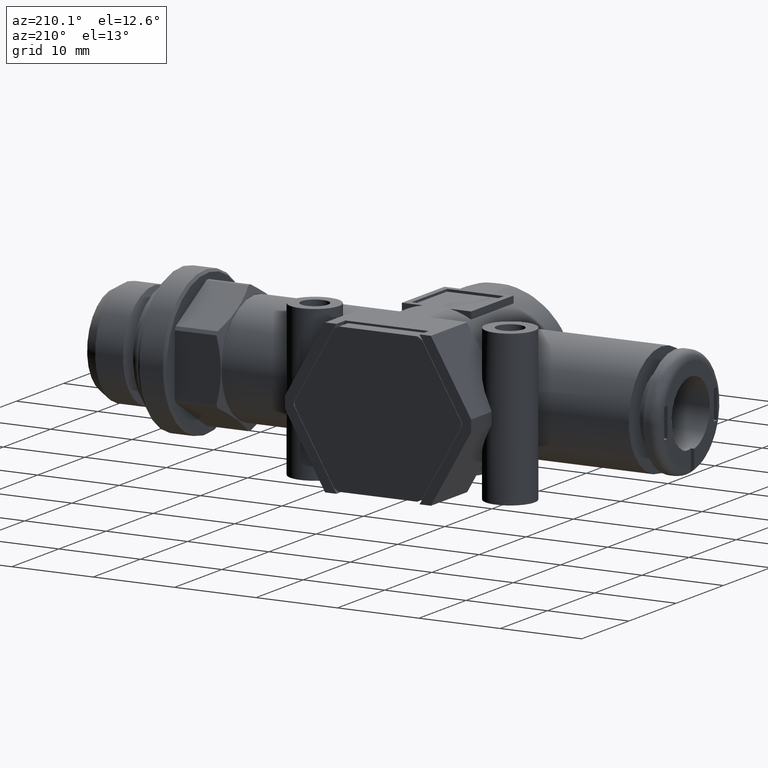
[diagram: clean part render]
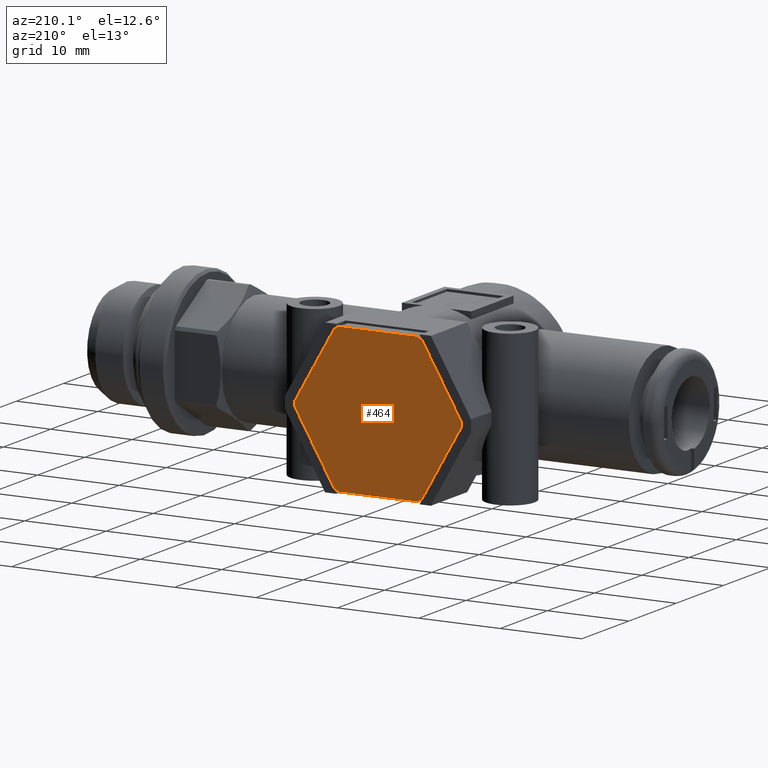
[diagram: same view with one face highlighted and labeled with its STEP entity id]
A machine part, auxiliary view. The second image highlights one B-rep face of the part: STEP entity #464.
In plain terms, the highlighted planar face has unit normal (0, 1, 0).
Its self-contained STEP definition (entity closure, byte-faithful):
#464 = ADVANCED_FACE( '', ( #963 ), #964, .T. );
#963 = FACE_OUTER_BOUND( '', #1500, .T. );
#964 = PLANE( '', #1501 );
#1500 = EDGE_LOOP( '', ( #2482, #2483, #2484, #2485, #2486, #2487, #2488, #2489, #2490, #2491, #2492, #2493 ) );
#1501 = AXIS2_PLACEMENT_3D( '', #2494, #2495, #2496 );
#2482 = ORIENTED_EDGE( '', *, *, #2902, .T. );
#2483 = ORIENTED_EDGE( '', *, *, #3220, .T. );
#2484 = ORIENTED_EDGE( '', *, *, #2897, .T. );
#2485 = ORIENTED_EDGE( '', *, *, #3221, .T. );
#2486 = ORIENTED_EDGE( '', *, *, #2980, .T. );
#2487 = ORIENTED_EDGE( '', *, *, #3101, .T. );
#2488 = ORIENTED_EDGE( '', *, *, #3091, .T. );
#2489 = ORIENTED_EDGE( '', *, *, #2891, .T. );
#2490 = ORIENTED_EDGE( '', *, *, #3159, .T. );
#2491 = ORIENTED_EDGE( '', *, *, #3162, .T. );
#2492 = ORIENTED_EDGE( '', *, *, #3108, .T. );
#2493 = ORIENTED_EDGE( '', *, *, #3066, .T. );
#2494 = CARTESIAN_POINT( '', ( 1.90000000000000, 0.000000000000000, 0.000000000000000 ) );
#2495 = DIRECTION( '', ( 1.00000000000000, 0.000000000000000, 0.000000000000000 ) );
#2496 = DIRECTION( '', ( 0.000000000000000, 0.000000000000000, -1.00000000000000 ) );
#2891 = EDGE_CURVE( '', #3375, #3373, #3376, .T. );
#2897 = EDGE_CURVE( '', #3384, #3385, #3386, .T. );
#2902 = EDGE_CURVE( '', #3393, #3394, #3395, .T. );
#2980 = EDGE_CURVE( '', #3522, #3523, #3524, .T. );
#3066 = EDGE_CURVE( '', #3659, #3393, #3660, .T. );
#3091 = EDGE_CURVE( '', #3699, #3375, #3700, .T. );
#3101 = EDGE_CURVE( '', #3523, #3699, #3713, .T. );
#3108 = EDGE_CURVE( '', #3722, #3659, #3723, .T. );
#3159 = EDGE_CURVE( '', #3373, #3793, #3794, .T. );
#3162 = EDGE_CURVE( '', #3793, #3722, #3797, .T. );
#3220 = EDGE_CURVE( '', #3394, #3384, #3877, .T. );
#3221 = EDGE_CURVE( '', #3385, #3522, #3878, .T. );
#3373 = VERTEX_POINT( '', #4069 );
#3375 = VERTEX_POINT( '', #4072 );
#3376 = CIRCLE( '', #4073, 10.2000000000000 );
#3384 = VERTEX_POINT( '', #4082 );
#3385 = VERTEX_POINT( '', #4083 );
#3386 = LINE( '', #4084, #4085 );
#3393 = VERTEX_POINT( '', #4095 );
#3394 = VERTEX_POINT( '', #4096 );
#3395 = LINE( '', #4097, #4098 );
#3522 = VERTEX_POINT( '', #4419 );
#3523 = VERTEX_POINT( '', #4420 );
#3524 = LINE( '', #4421, #4422 );
#3659 = VERTEX_POINT( '', #4807 );
#3660 = CIRCLE( '', #4808, 10.2000000000000 );
#3699 = VERTEX_POINT( '', #4905 );
#3700 = LINE( '', #4906, #4907 );
#3713 = CIRCLE( '', #4924, 10.2000000000000 );
#3722 = VERTEX_POINT( '', #4934 );
#3723 = LINE( '', #4935, #4936 );
#3793 = VERTEX_POINT( '', #5031 );
#3794 = LINE( '', #5032, #5033 );
#3797 = CIRCLE( '', #5037, 10.2000000000000 );
#3877 = CIRCLE( '', #5274, 10.2000000000000 );
#3878 = CIRCLE( '', #5275, 10.2000000000000 );
#4069 = CARTESIAN_POINT( '', ( 1.90000000000000, 5.39422863405995, -8.65692193816530 ) );
#4072 = CARTESIAN_POINT( '', ( 1.90000000000000, 4.80000000000000, -9.00000000000000 ) );
#4073 = AXIS2_PLACEMENT_3D( '', #5474, #5475, #5476 );
#4082 = CARTESIAN_POINT( '', ( 1.90000000000000, -5.39422863405995, 8.65692193816530 ) );
#4083 = CARTESIAN_POINT( '', ( 1.90000000000000, -10.1942286340599, 0.343078061834699 ) );
#4084 = CARTESIAN_POINT( '', ( 1.90000000000000, -5.19615242270663, 9.00000000000000 ) );
#4085 = VECTOR( '', #5484, 1000.00000000000 );
#4095 = CARTESIAN_POINT( '', ( 1.90000000000000, 4.80000000000000, 9.00000000000000 ) );
#4096 = CARTESIAN_POINT( '', ( 1.90000000000000, -4.80000000000000, 9.00000000000000 ) );
#4097 = CARTESIAN_POINT( '', ( 1.90000000000000, 5.19615242270663, 9.00000000000000 ) );
#4098 = VECTOR( '', #5488, 1000.00000000000 );
#4419 = CARTESIAN_POINT( '', ( 1.90000000000000, -10.1942286340599, -0.343078061834698 ) );
#4420 = CARTESIAN_POINT( '', ( 1.90000000000000, -5.39422863405995, -8.65692193816530 ) );
#4421 = CARTESIAN_POINT( '', ( 1.90000000000000, -10.3923048454133, 0.000000000000000 ) );
#4422 = VECTOR( '', #5586, 1000.00000000000 );
#4807 = CARTESIAN_POINT( '', ( 1.90000000000000, 5.39422863405995, 8.65692193816530 ) );
#4808 = AXIS2_PLACEMENT_3D( '', #5694, #5695, #5696 );
#4905 = CARTESIAN_POINT( '', ( 1.90000000000000, -4.80000000000000, -9.00000000000000 ) );
#4906 = CARTESIAN_POINT( '', ( 1.90000000000000, -5.19615242270663, -9.00000000000000 ) );
#4907 = VECTOR( '', #5728, 1000.00000000000 );
#4924 = AXIS2_PLACEMENT_3D( '', #5739, #5740, #5741 );
#4934 = CARTESIAN_POINT( '', ( 1.90000000000000, 10.1942286340599, 0.343078061834698 ) );
#4935 = CARTESIAN_POINT( '', ( 1.90000000000000, 10.3923048454133, 0.000000000000000 ) );
#4936 = VECTOR( '', #5749, 1000.00000000000 );
#5031 = CARTESIAN_POINT( '', ( 1.90000000000000, 10.1942286340599, -0.343078061834699 ) );
#5032 = CARTESIAN_POINT( '', ( 1.90000000000000, 5.19615242270663, -9.00000000000000 ) );
#5033 = VECTOR( '', #5806, 1000.00000000000 );
#5037 = AXIS2_PLACEMENT_3D( '', #5808, #5809, #5810 );
#5274 = AXIS2_PLACEMENT_3D( '', #5871, #5872, #5873 );
#5275 = AXIS2_PLACEMENT_3D( '', #5874, #5875, #5876 );
#5474 = CARTESIAN_POINT( '', ( 1.90000000000000, 0.000000000000000, 0.000000000000000 ) );
#5475 = DIRECTION( '', ( 1.00000000000000, 0.000000000000000, 0.000000000000000 ) );
#5476 = DIRECTION( '', ( 0.000000000000000, 0.000000000000000, -1.00000000000000 ) );
#5484 = DIRECTION( '', ( 0.000000000000000, -0.500000000000000, -0.866025403784439 ) );
#5488 = DIRECTION( '', ( 0.000000000000000, -1.00000000000000, 0.000000000000000 ) );
#5586 = DIRECTION( '', ( 0.000000000000000, 0.500000000000000, -0.866025403784439 ) );
#5694 = CARTESIAN_POINT( '', ( 1.90000000000000, 0.000000000000000, 0.000000000000000 ) );
#5695 = DIRECTION( '', ( 1.00000000000000, 0.000000000000000, 0.000000000000000 ) );
#5696 = DIRECTION( '', ( 0.000000000000000, 0.000000000000000, -1.00000000000000 ) );
#5728 = DIRECTION( '', ( 0.000000000000000, 1.00000000000000, 0.000000000000000 ) );
#5739 = CARTESIAN_POINT( '', ( 1.90000000000000, 0.000000000000000, 0.000000000000000 ) );
#5740 = DIRECTION( '', ( 1.00000000000000, 0.000000000000000, 0.000000000000000 ) );
#5741 = DIRECTION( '', ( 0.000000000000000, 0.000000000000000, -1.00000000000000 ) );
#5749 = DIRECTION( '', ( 0.000000000000000, -0.500000000000000, 0.866025403784439 ) );
#5806 = DIRECTION( '', ( 0.000000000000000, 0.500000000000000, 0.866025403784439 ) );
#5808 = CARTESIAN_POINT( '', ( 1.90000000000000, 0.000000000000000, 0.000000000000000 ) );
#5809 = DIRECTION( '', ( 1.00000000000000, 0.000000000000000, 0.000000000000000 ) );
#5810 = DIRECTION( '', ( 0.000000000000000, 0.000000000000000, -1.00000000000000 ) );
#5871 = CARTESIAN_POINT( '', ( 1.90000000000000, 0.000000000000000, 0.000000000000000 ) );
#5872 = DIRECTION( '', ( 1.00000000000000, 0.000000000000000, 0.000000000000000 ) );
#5873 = DIRECTION( '', ( 0.000000000000000, 0.000000000000000, -1.00000000000000 ) );
#5874 = CARTESIAN_POINT( '', ( 1.90000000000000, 0.000000000000000, 0.000000000000000 ) );
#5875 = DIRECTION( '', ( 1.00000000000000, 0.000000000000000, 0.000000000000000 ) );
#5876 = DIRECTION( '', ( 0.000000000000000, 0.000000000000000, -1.00000000000000 ) );